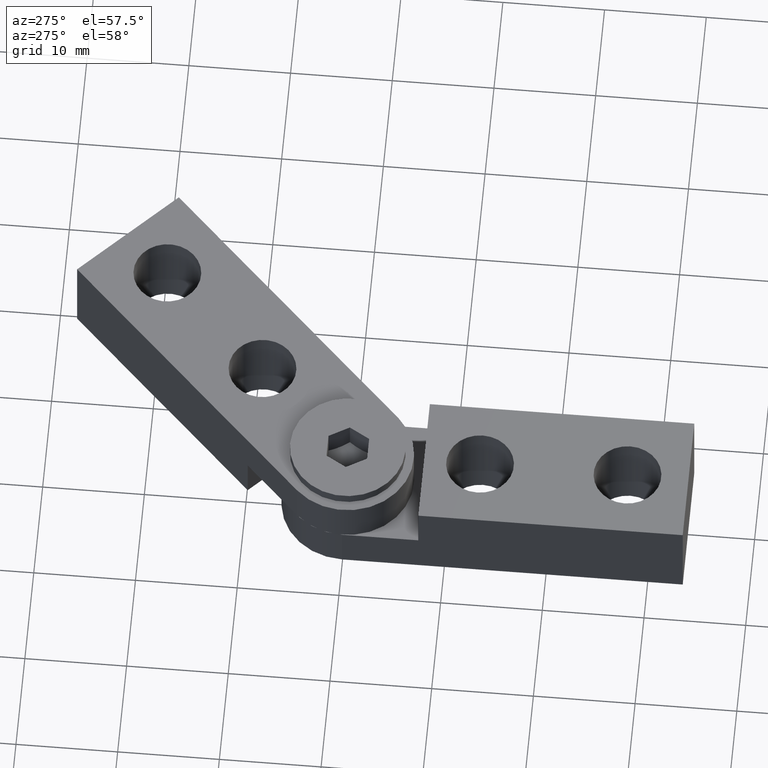
[diagram: clean part render]
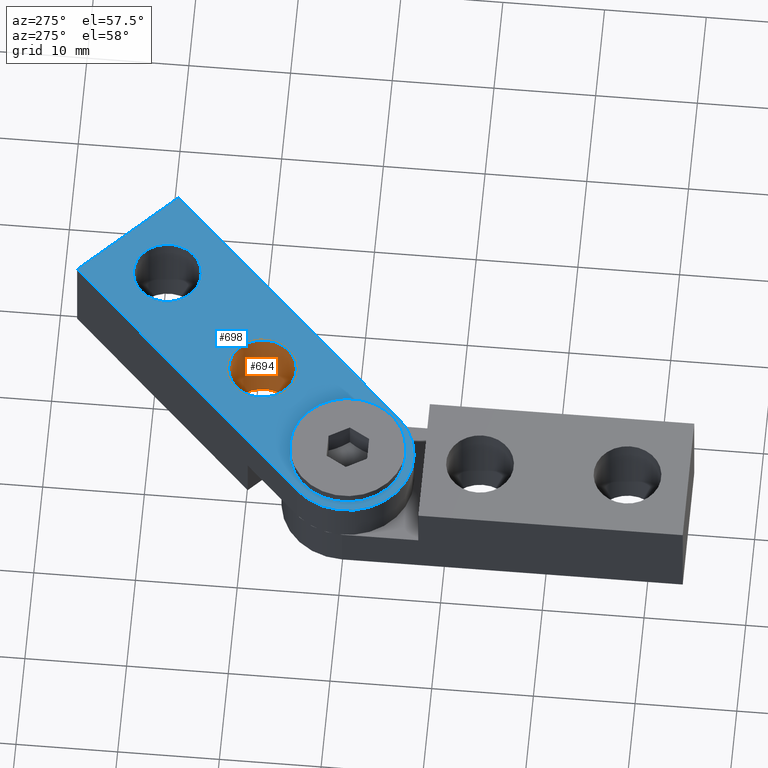
[diagram: same view with the hole feature highlighted: cylindrical wall and planar end face, labeled with their STEP entity ids]
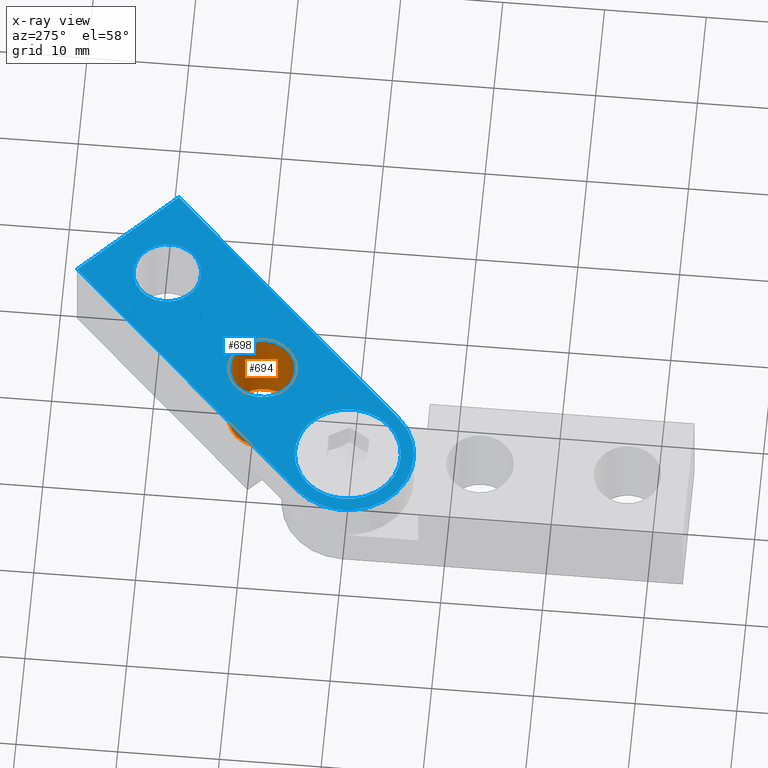
[diagram: x-ray of the same camera — body ghosted, the hole faces saturated]
A machine part, auxiliary view. The highlighted faces form one hole feature of diameter 6.647 mm: the cylindrical wall (entity #694, orange) and its adjacent planar end face (entity #698, blue) — they share a circular edge in the B-rep.
The next image is the same camera in x-ray (body ghosted, the hole faces saturated) — the bore reads through the body.
Wall:
#99=FACE_OUTER_BOUND('',#144,.T.);
#144=EDGE_LOOP('',(#573,#574,#575,#576,#577));
#200=LINE('',#1195,#256);
#256=VECTOR('',#989,3.3235);
#295=CIRCLE('',#827,3.3235);
#296=CIRCLE('',#828,3.3235);
#300=CIRCLE('',#835,3.3235);
#345=VERTEX_POINT('',#1175);
#346=VERTEX_POINT('',#1176);
#352=VERTEX_POINT('',#1194);
#425=EDGE_CURVE('',#345,#346,#295,.T.);
#426=EDGE_CURVE('',#346,#345,#296,.T.);
#434=EDGE_CURVE('',#346,#352,#200,.T.);
#435=EDGE_CURVE('',#352,#352,#300,.T.);
#573=ORIENTED_EDGE('',*,*,#425,.F.);
#574=ORIENTED_EDGE('',*,*,#426,.F.);
#575=ORIENTED_EDGE('',*,*,#434,.T.);
#576=ORIENTED_EDGE('',*,*,#435,.F.);
#577=ORIENTED_EDGE('',*,*,#434,.F.);
#672=CYLINDRICAL_SURFACE('',#834,3.3235);
#694=ADVANCED_FACE('',(#99),#672,.F.);
#827=AXIS2_PLACEMENT_3D('',#1177,#969,#970);
#828=AXIS2_PLACEMENT_3D('',#1178,#971,#972);
#834=AXIS2_PLACEMENT_3D('',#1193,#987,#988);
#835=AXIS2_PLACEMENT_3D('',#1196,#990,#991);
#969=DIRECTION('center_axis',(0.,0.,-1.));
#970=DIRECTION('ref_axis',(1.,0.,0.));
#971=DIRECTION('center_axis',(0.,0.,-1.));
#972=DIRECTION('ref_axis',(1.,0.,0.));
#987=DIRECTION('center_axis',(0.,0.,1.));
#988=DIRECTION('ref_axis',(1.,0.,0.));
#989=DIRECTION('',(0.,0.,-1.));
#990=DIRECTION('center_axis',(0.,0.,1.));
#991=DIRECTION('ref_axis',(1.,0.,0.));
#1175=CARTESIAN_POINT('',(3.3235,-13.,9.));
#1176=CARTESIAN_POINT('',(-3.3235,-13.,9.));
#1177=CARTESIAN_POINT('Origin',(0.,-13.,9.));
#1178=CARTESIAN_POINT('Origin',(0.,-13.,9.));
#1193=CARTESIAN_POINT('Origin',(0.,-13.,-1.));
#1194=CARTESIAN_POINT('',(-3.3235,-13.,0.));
#1195=CARTESIAN_POINT('',(-3.3235,-13.,-1.));
#1196=CARTESIAN_POINT('Origin',(0.,-13.,0.));
End face:
#55=FACE_BOUND('',#149,.T.);
#56=FACE_BOUND('',#150,.T.);
#57=FACE_BOUND('',#151,.T.);
#72=PLANE('',#840);
#103=FACE_OUTER_BOUND('',#148,.T.);
#148=EDGE_LOOP('',(#592,#593,#594,#595));
#149=EDGE_LOOP('',(#596,#597));
#150=EDGE_LOOP('',(#598));
#151=EDGE_LOOP('',(#599));
#197=LINE('',#1187,#253);
#203=LINE('',#1204,#259);
#204=LINE('',#1206,#260);
#253=VECTOR('',#980,10.);
#259=VECTOR('',#1000,10.);
#260=VECTOR('',#1003,10.);
#289=CIRCLE('',#817,5.2);
#290=CIRCLE('',#818,5.2);
#299=CIRCLE('',#833,3.3235);
#300=CIRCLE('',#835,3.3235);
#301=CIRCLE('',#837,6.5);
#332=VERTEX_POINT('',#1141);
#333=VERTEX_POINT('',#1142);
#349=VERTEX_POINT('',#1184);
#350=VERTEX_POINT('',#1186);
#351=VERTEX_POINT('',#1190);
#352=VERTEX_POINT('',#1194);
#353=VERTEX_POINT('',#1198);
#354=VERTEX_POINT('',#1202);
#408=EDGE_CURVE('',#332,#333,#289,.T.);
#409=EDGE_CURVE('',#333,#332,#290,.T.);
#430=EDGE_CURVE('',#349,#350,#197,.T.);
#433=EDGE_CURVE('',#351,#351,#299,.T.);
#435=EDGE_CURVE('',#352,#352,#300,.T.);
#437=EDGE_CURVE('',#353,#349,#301,.T.);
#439=EDGE_CURVE('',#354,#353,#203,.T.);
#440=EDGE_CURVE('',#350,#354,#204,.T.);
#592=ORIENTED_EDGE('',*,*,#430,.F.);
#593=ORIENTED_EDGE('',*,*,#437,.F.);
#594=ORIENTED_EDGE('',*,*,#439,.F.);
#595=ORIENTED_EDGE('',*,*,#440,.F.);
#596=ORIENTED_EDGE('',*,*,#408,.T.);
#597=ORIENTED_EDGE('',*,*,#409,.T.);
#598=ORIENTED_EDGE('',*,*,#433,.T.);
#599=ORIENTED_EDGE('',*,*,#435,.T.);
#698=ADVANCED_FACE('',(#103,#55,#56,#57),#72,.F.);
#817=AXIS2_PLACEMENT_3D('',#1143,#938,#939);
#818=AXIS2_PLACEMENT_3D('',#1144,#940,#941);
#833=AXIS2_PLACEMENT_3D('',#1192,#985,#986);
#835=AXIS2_PLACEMENT_3D('',#1196,#990,#991);
#837=AXIS2_PLACEMENT_3D('',#1200,#995,#996);
#840=AXIS2_PLACEMENT_3D('',#1207,#1004,#1005);
#938=DIRECTION('center_axis',(0.,0.,1.));
#939=DIRECTION('ref_axis',(1.,0.,0.));
#940=DIRECTION('center_axis',(0.,0.,1.));
#941=DIRECTION('ref_axis',(1.,0.,0.));
#980=DIRECTION('',(0.,-1.,0.));
#985=DIRECTION('center_axis',(0.,0.,1.));
#986=DIRECTION('ref_axis',(1.,0.,0.));
#990=DIRECTION('center_axis',(0.,0.,1.));
#991=DIRECTION('ref_axis',(1.,0.,0.));
#995=DIRECTION('center_axis',(0.,0.,1.));
#996=DIRECTION('ref_axis',(1.,-2.1350442781253E-17,0.));
#1000=DIRECTION('',(-3.31409858097062E-17,1.,0.));
#1003=DIRECTION('',(1.,0.,0.));
#1004=DIRECTION('center_axis',(0.,0.,1.));
#1005=DIRECTION('ref_axis',(1.,0.,0.));
#1141=CARTESIAN_POINT('',(5.2,0.,0.));
#1142=CARTESIAN_POINT('',(-5.2,-6.36816335556624E-16,-1.38777878078145E-16));
#1143=CARTESIAN_POINT('Origin',(0.,0.,0.));
#1144=CARTESIAN_POINT('Origin',(0.,0.,0.));
#1184=CARTESIAN_POINT('',(-6.5,0.,0.));
#1186=CARTESIAN_POINT('',(-6.5,-33.5,0.));
#1187=CARTESIAN_POINT('',(-6.5,0.,0.));
#1190=CARTESIAN_POINT('',(-3.3235,-27.5,0.));
#1192=CARTESIAN_POINT('Origin',(0.,-27.5,0.));
#1194=CARTESIAN_POINT('',(-3.3235,-13.,0.));
#1196=CARTESIAN_POINT('Origin',(0.,-13.,0.));
#1198=CARTESIAN_POINT('',(6.5,0.,0.));
#1200=CARTESIAN_POINT('Origin',(-2.77555756156289E-16,1.38777878078145E-16,
0.));
#1202=CARTESIAN_POINT('',(6.5,-33.5,0.));
#1204=CARTESIAN_POINT('',(6.5,-33.5,0.));
#1206=CARTESIAN_POINT('',(-6.5,-33.5,0.));
#1207=CARTESIAN_POINT('Origin',(-6.74268059053723E-16,-15.6782283197694,
0.));